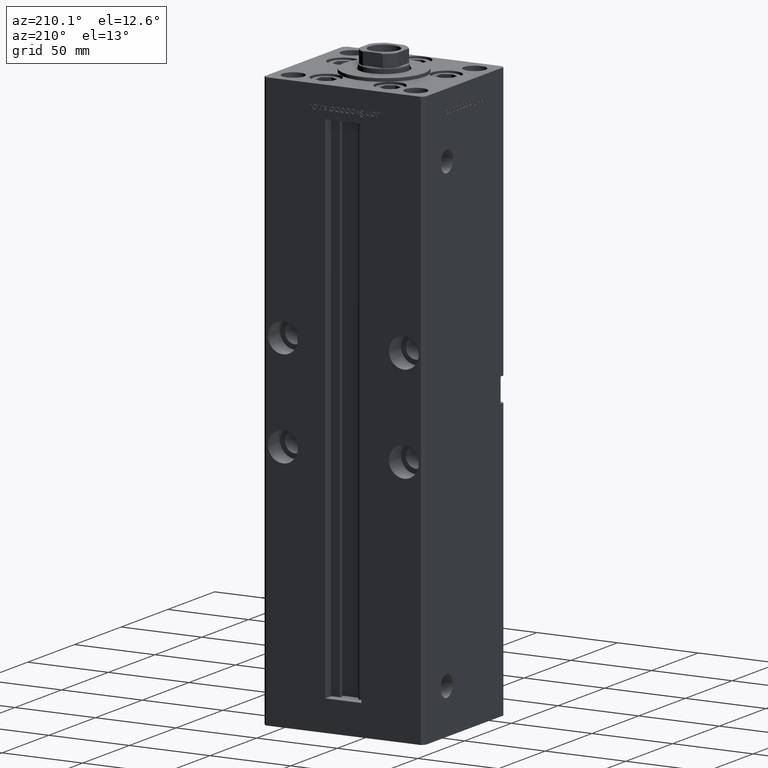
[diagram: clean part render]
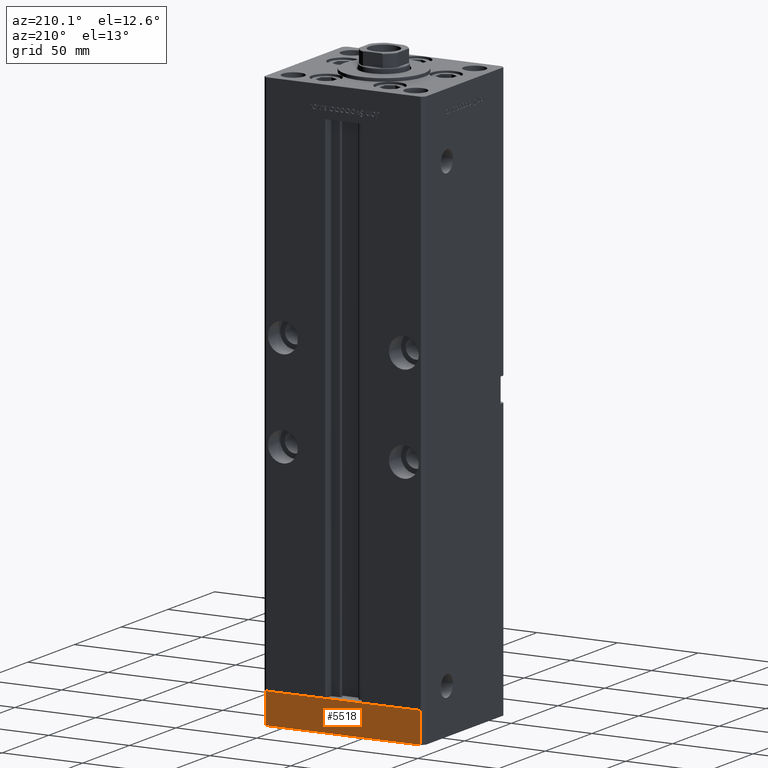
[diagram: same view with one face highlighted and labeled with its STEP entity id]
A machine part, auxiliary view. The second image highlights one B-rep face of the part: STEP entity #5518.
In plain terms, the highlighted planar face has unit normal (-0, 1, 0).
Its self-contained STEP definition (entity closure, byte-faithful):
#2781 = CARTESIAN_POINT ( 'NONE',  ( -48.00000000000000711, 43.49999999999996447, 0.000000000000000000 ) ) ;
#4187 = VECTOR ( 'NONE', #17971, 1000.000000000000000 ) ;
#5518 = ADVANCED_FACE ( 'NONE', ( #23549 ), #11205, .T. ) ;
#5908 = CARTESIAN_POINT ( 'NONE',  ( 47.99999999999990763, 43.50000000000000000, 0.000000000000000000 ) ) ;
#6774 = ORIENTED_EDGE ( 'NONE', *, *, #8796, .F. ) ;
#7215 = LINE ( 'NONE', #31151, #47947 ) ;
#8796 = EDGE_CURVE ( 'NONE', #37509, #41804, #7215, .T. ) ;
#10179 = DIRECTION ( 'NONE',  ( 0.000000000000000000, 0.000000000000000000, 1.000000000000000000 ) ) ;
#11205 = PLANE ( 'NONE',  #38672 ) ;
#13522 = EDGE_CURVE ( 'NONE', #37509, #37316, #34364, .T. ) ;
#13691 = DIRECTION ( 'NONE',  ( 0.000000000000000000, 0.000000000000000000, 1.000000000000000000 ) ) ;
#14762 = CARTESIAN_POINT ( 'NONE',  ( -48.00000000000000711, 43.49999999999996447, -19.00000000000000000 ) ) ;
#16419 = VECTOR ( 'NONE', #13691, 1000.000000000000000 ) ;
#17971 = DIRECTION ( 'NONE',  ( -1.000000000000000000, -3.614007241618350743E-16, 0.000000000000000000 ) ) ;
#18910 = CARTESIAN_POINT ( 'NONE',  ( 47.99999999999990763, 43.50000000000000000, 0.000000000000000000 ) ) ;
#19052 = CARTESIAN_POINT ( 'NONE',  ( 47.99999999999990763, 43.50000000000000000, -19.00000000000000000 ) ) ;
#19273 = CARTESIAN_POINT ( 'NONE',  ( 47.99999999999990763, 43.50000000000000000, -19.00000000000000000 ) ) ;
#20910 = EDGE_CURVE ( 'NONE', #37316, #27992, #47540, .T. ) ;
#23549 = FACE_OUTER_BOUND ( 'NONE', #48731, .T. ) ;
#26597 = DIRECTION ( 'NONE',  ( -1.000000000000000000, -3.614007241618350743E-16, 0.000000000000000000 ) ) ;
#27992 = VERTEX_POINT ( 'NONE', #2781 ) ;
#31151 = CARTESIAN_POINT ( 'NONE',  ( 47.99999999999990763, 43.50000000000000000, -19.00000000000000000 ) ) ;
#31669 = ORIENTED_EDGE ( 'NONE', *, *, #32838, .F. ) ;
#32838 = EDGE_CURVE ( 'NONE', #41804, #27992, #42719, .T. ) ;
#34364 = LINE ( 'NONE', #38403, #4187 ) ;
#37316 = VERTEX_POINT ( 'NONE', #45411 ) ;
#37509 = VERTEX_POINT ( 'NONE', #19052 ) ;
#38403 = CARTESIAN_POINT ( 'NONE',  ( 47.99999999999990763, 43.50000000000000000, -19.00000000000000000 ) ) ;
#38672 = AXIS2_PLACEMENT_3D ( 'NONE', #19273, #52041, #51775 ) ;
#41558 = VECTOR ( 'NONE', #26597, 1000.000000000000000 ) ;
#41804 = VERTEX_POINT ( 'NONE', #18910 ) ;
#42030 = ORIENTED_EDGE ( 'NONE', *, *, #20910, .T. ) ;
#42719 = LINE ( 'NONE', #5908, #41558 ) ;
#45411 = CARTESIAN_POINT ( 'NONE',  ( -48.00000000000000711, 43.49999999999996447, -19.00000000000000000 ) ) ;
#47540 = LINE ( 'NONE', #14762, #16419 ) ;
#47947 = VECTOR ( 'NONE', #10179, 1000.000000000000000 ) ;
#48731 = EDGE_LOOP ( 'NONE', ( #31669, #6774, #49101, #42030 ) ) ;
#49101 = ORIENTED_EDGE ( 'NONE', *, *, #13522, .T. ) ;
#51775 = DIRECTION ( 'NONE',  ( -1.000000000000000000, -3.614007241618350743E-16, 0.000000000000000000 ) ) ;
#52041 = DIRECTION ( 'NONE',  ( -3.614007241618350743E-16, 1.000000000000000000, 0.000000000000000000 ) ) ;